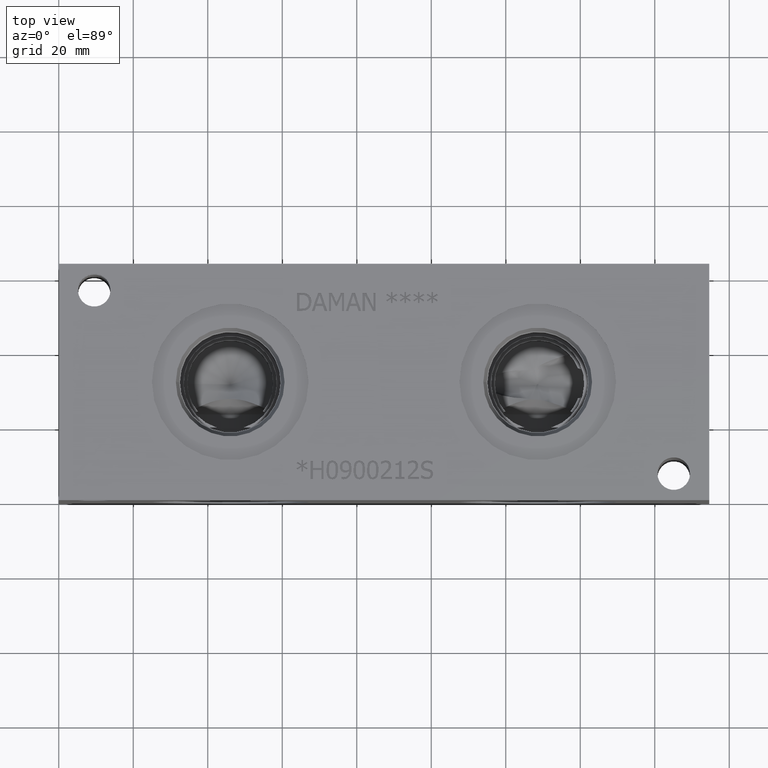
[diagram: clean part render]
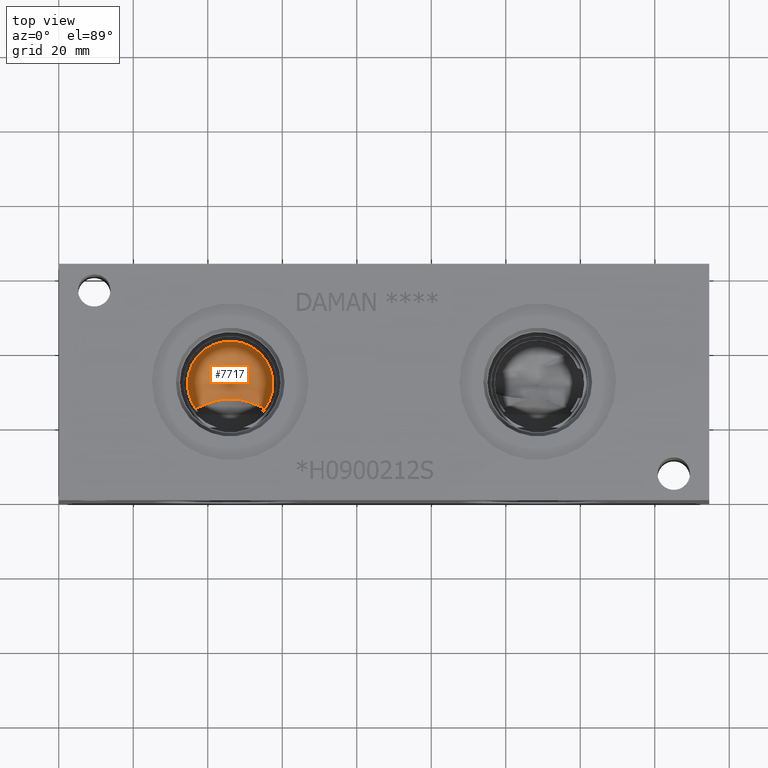
[diagram: same view with one face highlighted and labeled with its STEP entity id]
A machine part, top view. The second image highlights one B-rep face of the part: STEP entity #7717.
In plain terms, the highlighted conical surface has half-angle 60 deg.
Its self-contained STEP definition (entity closure, byte-faithful):
#83=CONICAL_SURFACE('',#8115,5.7531,1.0471975511966);
#173=CIRCLE('',#8116,11.5062);
#174=CIRCLE('',#8117,11.5062);
#492=B_SPLINE_CURVE_WITH_KNOTS('',3,(#13276,#13277,#13278,#13279,#13280,
#13281,#13282,#13283,#13284,#13285,#13286,#13287,#13288,#13289,#13290,#13291,
#13292,#13293),.UNSPECIFIED.,.F.,.F.,(4,2,2,2,2,2,2,2,4),(2.68214328199209,
2.93483737741891,3.35409985990732,3.54514594306056,3.7361920262138,3.92723810936704,
4.11828419252028,4.5375466750087,4.79024077043552),.UNSPECIFIED.);
#956=FACE_OUTER_BOUND('',#1385,.T.);
#1385=EDGE_LOOP('',(#6640,#6641,#6642,#6643,#6644));
#2122=LINE('',#13356,#2837);
#2837=VECTOR('',#9585,5.7531);
#3532=VERTEX_POINT('',#13268);
#3533=VERTEX_POINT('',#13275);
#3546=VERTEX_POINT('',#13353);
#3547=VERTEX_POINT('',#13355);
#4578=EDGE_CURVE('',#3533,#3532,#492,.T.);
#4599=EDGE_CURVE('',#3532,#3546,#173,.T.);
#4600=EDGE_CURVE('',#3546,#3547,#2122,.T.);
#4601=EDGE_CURVE('',#3546,#3533,#174,.T.);
#6640=ORIENTED_EDGE('',*,*,#4578,.T.);
#6641=ORIENTED_EDGE('',*,*,#4599,.T.);
#6642=ORIENTED_EDGE('',*,*,#4600,.T.);
#6643=ORIENTED_EDGE('',*,*,#4600,.F.);
#6644=ORIENTED_EDGE('',*,*,#4601,.T.);
#7717=ADVANCED_FACE('',(#956),#83,.F.);
#8115=AXIS2_PLACEMENT_3D('',#13352,#9581,#9582);
#8116=AXIS2_PLACEMENT_3D('',#13354,#9583,#9584);
#8117=AXIS2_PLACEMENT_3D('',#13357,#9586,#9587);
#9581=DIRECTION('center_axis',(0.,0.,1.));
#9582=DIRECTION('ref_axis',(1.,0.,0.));
#9583=DIRECTION('center_axis',(0.,0.,1.));
#9584=DIRECTION('ref_axis',(1.,0.,0.));
#9585=DIRECTION('',(0.866025403784439,1.06057523872491E-16,-0.5));
#9586=DIRECTION('center_axis',(0.,0.,1.));
#9587=DIRECTION('ref_axis',(1.,0.,0.));
#13268=CARTESIAN_POINT('',(55.4350758386844,25.1288711627191,32.63301));
#13275=CARTESIAN_POINT('',(36.6145241613156,25.1288711627191,32.63301));
#13276=CARTESIAN_POINT('Ctrl Pts',(36.6145241613156,25.1288711627191,32.63301));
#13277=CARTESIAN_POINT('Ctrl Pts',(37.308808990426,25.4547745549062,32.1969058684233));
#13278=CARTESIAN_POINT('Ctrl Pts',(38.0011074615259,25.7704883113377,31.7662413001952));
#13279=CARTESIAN_POINT('Ctrl Pts',(39.8466794671015,26.5632947515142,30.6436525338794));
#13280=CARTESIAN_POINT('Ctrl Pts',(40.9942171136769,27.0157204202676,29.9566893565635));
#13281=CARTESIAN_POINT('Ctrl Pts',(42.7722507374629,27.4792292402493,29.0835431560063));
#13282=CARTESIAN_POINT('Ctrl Pts',(43.4016223255554,27.6055325396935,28.8035818502476));
#13283=CARTESIAN_POINT('Ctrl Pts',(44.7080896057746,27.7595599525381,28.3947615043029));
#13284=CARTESIAN_POINT('Ctrl Pts',(45.3879797228225,27.790293861279,28.2760397377527));
#13285=CARTESIAN_POINT('Ctrl Pts',(46.6616202771775,27.790293861279,28.2760397377527));
#13286=CARTESIAN_POINT('Ctrl Pts',(47.3415103942254,27.7595599525381,28.3947615043029));
#13287=CARTESIAN_POINT('Ctrl Pts',(48.6479776744446,27.6055325396935,28.8035818502476));
#13288=CARTESIAN_POINT('Ctrl Pts',(49.2773492625371,27.4792292402493,29.0835431560063));
#13289=CARTESIAN_POINT('Ctrl Pts',(51.0553828863231,27.0157204202676,29.9566893565635));
#13290=CARTESIAN_POINT('Ctrl Pts',(52.2029205328985,26.5632947515142,30.6436525338794));
#13291=CARTESIAN_POINT('Ctrl Pts',(54.0484925384741,25.7704883113377,31.7662413001951));
#13292=CARTESIAN_POINT('Ctrl Pts',(54.740791009574,25.4547745549062,32.1969058684233));
#13293=CARTESIAN_POINT('Ctrl Pts',(55.4350758386844,25.1288711627191,32.63301));
#13352=CARTESIAN_POINT('Origin',(46.0248,31.75,29.3114561663252));
#13353=CARTESIAN_POINT('',(34.5186,31.75,32.63301));
#13354=CARTESIAN_POINT('Origin',(46.0248,31.75,32.63301));
#13355=CARTESIAN_POINT('',(46.0248,31.75,25.9899023326503));
#13356=CARTESIAN_POINT('',(40.2717,31.75,29.3114561663252));
#13357=CARTESIAN_POINT('Origin',(46.0248,31.75,32.63301));